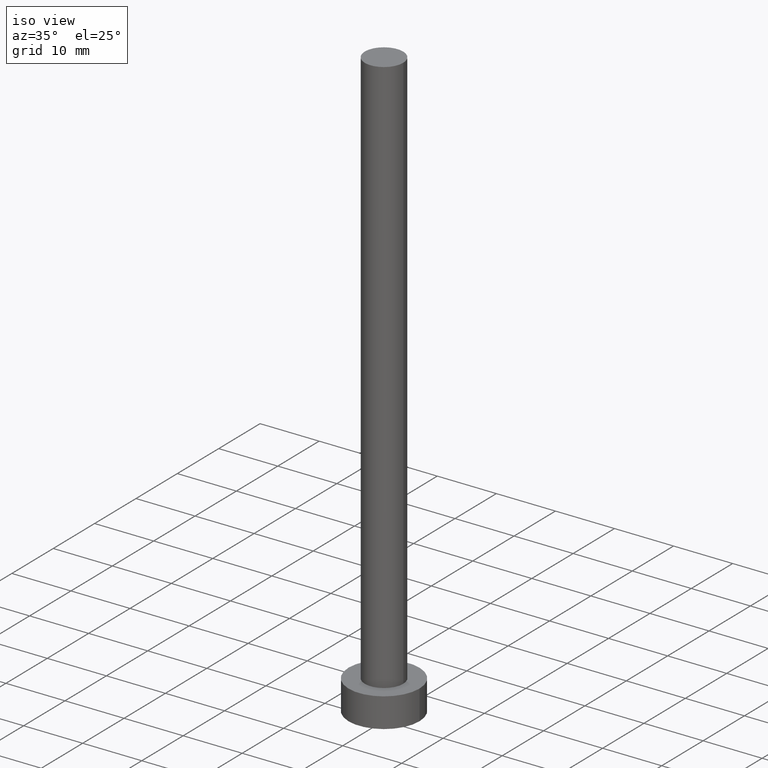
[diagram: clean part render]
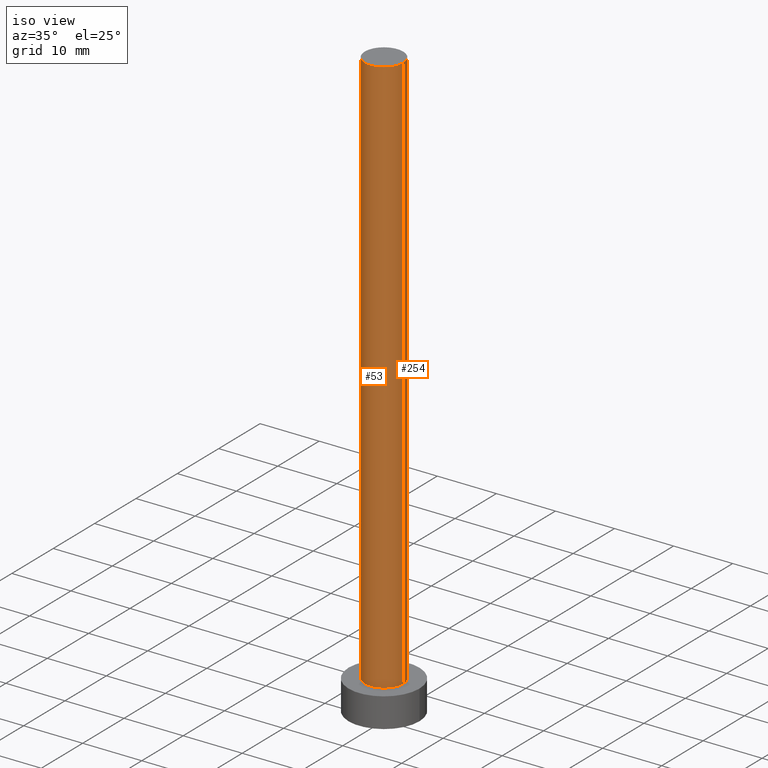
[diagram: same view with one multi-face feature highlighted, each face labeled with its STEP entity id]
A machine part, iso view. The highlighted faces form ONE feature: a constant-radius fillet chain: 2 tangent blend faces with common blend radius 3.25 mm. The faces share edges in the B-rep.
Their STEP definitions:
[1] entity #254 (Cylinder):
#4 = LINE ( 'NONE', #217, #91 ) ;
#12 = CARTESIAN_POINT ( 'NONE',  ( 0.000000000000000000, 0.000000000000000000, 5.000000000000000000 ) ) ;
#31 = VERTEX_POINT ( 'NONE', #118 ) ;
#34 = AXIS2_PLACEMENT_3D ( 'NONE', #124, #153, #64 ) ;
#40 = DIRECTION ( 'NONE',  ( -0.000000000000000000, -0.000000000000000000, -1.000000000000000000 ) ) ;
#55 = LINE ( 'NONE', #101, #244 ) ;
#63 = DIRECTION ( 'NONE',  ( -0.000000000000000000, -0.000000000000000000, -1.000000000000000000 ) ) ;
#64 = DIRECTION ( 'NONE',  ( -1.000000000000000000, 0.000000000000000000, 0.000000000000000000 ) ) ;
#65 = EDGE_CURVE ( 'NONE', #246, #98, #55, .T. ) ;
#69 = CIRCLE ( 'NONE', #166, 3.250000000000000444 ) ;
#76 = CARTESIAN_POINT ( 'NONE',  ( 0.000000000000000000, 0.000000000000000000, 100.0000000000000000 ) ) ;
#78 = ORIENTED_EDGE ( 'NONE', *, *, #152, .F. ) ;
#82 = FACE_OUTER_BOUND ( 'NONE', #180, .T. ) ;
#87 = DIRECTION ( 'NONE',  ( 0.000000000000000000, 0.000000000000000000, 1.000000000000000000 ) ) ;
#91 = VECTOR ( 'NONE', #63, 1000.000000000000000 ) ;
#95 = VERTEX_POINT ( 'NONE', #147 ) ;
#98 = VERTEX_POINT ( 'NONE', #146 ) ;
#101 = CARTESIAN_POINT ( 'NONE',  ( 3.250000000000000444, 3.980102097228898231E-16, 100.0000000000000000 ) ) ;
#118 = CARTESIAN_POINT ( 'NONE',  ( -3.250000000000000444, 0.000000000000000000, 5.000000000000000000 ) ) ;
#124 = CARTESIAN_POINT ( 'NONE',  ( 0.000000000000000000, 0.000000000000000000, 100.0000000000000000 ) ) ;
#126 = DIRECTION ( 'NONE',  ( 1.000000000000000000, 0.000000000000000000, 0.000000000000000000 ) ) ;
#135 = ORIENTED_EDGE ( 'NONE', *, *, #182, .F. ) ;
#146 = CARTESIAN_POINT ( 'NONE',  ( 3.250000000000000444, 3.980102097228898231E-16, 5.000000000000000000 ) ) ;
#147 = CARTESIAN_POINT ( 'NONE',  ( -3.250000000000000444, 0.000000000000000000, 100.0000000000000000 ) ) ;
#152 = EDGE_CURVE ( 'NONE', #246, #95, #208, .T. ) ;
#153 = DIRECTION ( 'NONE',  ( -0.000000000000000000, -0.000000000000000000, -1.000000000000000000 ) ) ;
#163 = ORIENTED_EDGE ( 'NONE', *, *, #65, .T. ) ;
#166 = AXIS2_PLACEMENT_3D ( 'NONE', #12, #87, #126 ) ;
#175 = DIRECTION ( 'NONE',  ( 0.000000000000000000, 0.000000000000000000, 1.000000000000000000 ) ) ;
#180 = EDGE_LOOP ( 'NONE', ( #78, #163, #205, #135 ) ) ;
#182 = EDGE_CURVE ( 'NONE', #95, #31, #4, .T. ) ;
#195 = DIRECTION ( 'NONE',  ( 1.000000000000000000, 0.000000000000000000, 0.000000000000000000 ) ) ;
#205 = ORIENTED_EDGE ( 'NONE', *, *, #251, .T. ) ;
#208 = CIRCLE ( 'NONE', #238, 3.250000000000000444 ) ;
#217 = CARTESIAN_POINT ( 'NONE',  ( -3.250000000000000444, 0.000000000000000000, 100.0000000000000000 ) ) ;
#218 = CARTESIAN_POINT ( 'NONE',  ( 3.250000000000000444, 3.980102097228898231E-16, 100.0000000000000000 ) ) ;
#238 = AXIS2_PLACEMENT_3D ( 'NONE', #76, #175, #195 ) ;
#241 = CYLINDRICAL_SURFACE ( 'NONE', #34, 3.250000000000000444 ) ;
#244 = VECTOR ( 'NONE', #40, 1000.000000000000000 ) ;
#246 = VERTEX_POINT ( 'NONE', #218 ) ;
#251 = EDGE_CURVE ( 'NONE', #98, #31, #69, .T. ) ;
#254 = ADVANCED_FACE ( 'NONE', ( #82 ), #241, .T. ) ;
[2] entity #53 (Cylinder):
#1 = DIRECTION ( 'NONE',  ( -1.000000000000000000, 0.000000000000000000, 0.000000000000000000 ) ) ;
#4 = LINE ( 'NONE', #217, #91 ) ;
#6 = DIRECTION ( 'NONE',  ( 1.000000000000000000, 0.000000000000000000, 0.000000000000000000 ) ) ;
#8 = AXIS2_PLACEMENT_3D ( 'NONE', #193, #215, #239 ) ;
#31 = VERTEX_POINT ( 'NONE', #118 ) ;
#40 = DIRECTION ( 'NONE',  ( -0.000000000000000000, -0.000000000000000000, -1.000000000000000000 ) ) ;
#44 = DIRECTION ( 'NONE',  ( 0.000000000000000000, 0.000000000000000000, 1.000000000000000000 ) ) ;
#49 = CIRCLE ( 'NONE', #8, 3.250000000000000444 ) ;
#53 = ADVANCED_FACE ( 'NONE', ( #54 ), #148, .T. ) ;
#54 = FACE_OUTER_BOUND ( 'NONE', #56, .T. ) ;
#55 = LINE ( 'NONE', #101, #244 ) ;
#56 = EDGE_LOOP ( 'NONE', ( #150, #136, #129, #223 ) ) ;
#57 = CIRCLE ( 'NONE', #231, 3.250000000000000444 ) ;
#63 = DIRECTION ( 'NONE',  ( -0.000000000000000000, -0.000000000000000000, -1.000000000000000000 ) ) ;
#65 = EDGE_CURVE ( 'NONE', #246, #98, #55, .T. ) ;
#70 = CARTESIAN_POINT ( 'NONE',  ( 0.000000000000000000, 0.000000000000000000, 5.000000000000000000 ) ) ;
#91 = VECTOR ( 'NONE', #63, 1000.000000000000000 ) ;
#95 = VERTEX_POINT ( 'NONE', #147 ) ;
#98 = VERTEX_POINT ( 'NONE', #146 ) ;
#101 = CARTESIAN_POINT ( 'NONE',  ( 3.250000000000000444, 3.980102097228898231E-16, 100.0000000000000000 ) ) ;
#118 = CARTESIAN_POINT ( 'NONE',  ( -3.250000000000000444, 0.000000000000000000, 5.000000000000000000 ) ) ;
#129 = ORIENTED_EDGE ( 'NONE', *, *, #182, .T. ) ;
#136 = ORIENTED_EDGE ( 'NONE', *, *, #222, .F. ) ;
#146 = CARTESIAN_POINT ( 'NONE',  ( 3.250000000000000444, 3.980102097228898231E-16, 5.000000000000000000 ) ) ;
#147 = CARTESIAN_POINT ( 'NONE',  ( -3.250000000000000444, 0.000000000000000000, 100.0000000000000000 ) ) ;
#148 = CYLINDRICAL_SURFACE ( 'NONE', #203, 3.250000000000000444 ) ;
#150 = ORIENTED_EDGE ( 'NONE', *, *, #65, .F. ) ;
#165 = DIRECTION ( 'NONE',  ( -0.000000000000000000, -0.000000000000000000, -1.000000000000000000 ) ) ;
#182 = EDGE_CURVE ( 'NONE', #95, #31, #4, .T. ) ;
#191 = EDGE_CURVE ( 'NONE', #31, #98, #57, .T. ) ;
#193 = CARTESIAN_POINT ( 'NONE',  ( 0.000000000000000000, 0.000000000000000000, 100.0000000000000000 ) ) ;
#203 = AXIS2_PLACEMENT_3D ( 'NONE', #227, #165, #1 ) ;
#215 = DIRECTION ( 'NONE',  ( 0.000000000000000000, 0.000000000000000000, 1.000000000000000000 ) ) ;
#217 = CARTESIAN_POINT ( 'NONE',  ( -3.250000000000000444, 0.000000000000000000, 100.0000000000000000 ) ) ;
#218 = CARTESIAN_POINT ( 'NONE',  ( 3.250000000000000444, 3.980102097228898231E-16, 100.0000000000000000 ) ) ;
#222 = EDGE_CURVE ( 'NONE', #95, #246, #49, .T. ) ;
#223 = ORIENTED_EDGE ( 'NONE', *, *, #191, .T. ) ;
#227 = CARTESIAN_POINT ( 'NONE',  ( 0.000000000000000000, 0.000000000000000000, 100.0000000000000000 ) ) ;
#231 = AXIS2_PLACEMENT_3D ( 'NONE', #70, #44, #6 ) ;
#239 = DIRECTION ( 'NONE',  ( 1.000000000000000000, 0.000000000000000000, 0.000000000000000000 ) ) ;
#244 = VECTOR ( 'NONE', #40, 1000.000000000000000 ) ;
#246 = VERTEX_POINT ( 'NONE', #218 ) ;